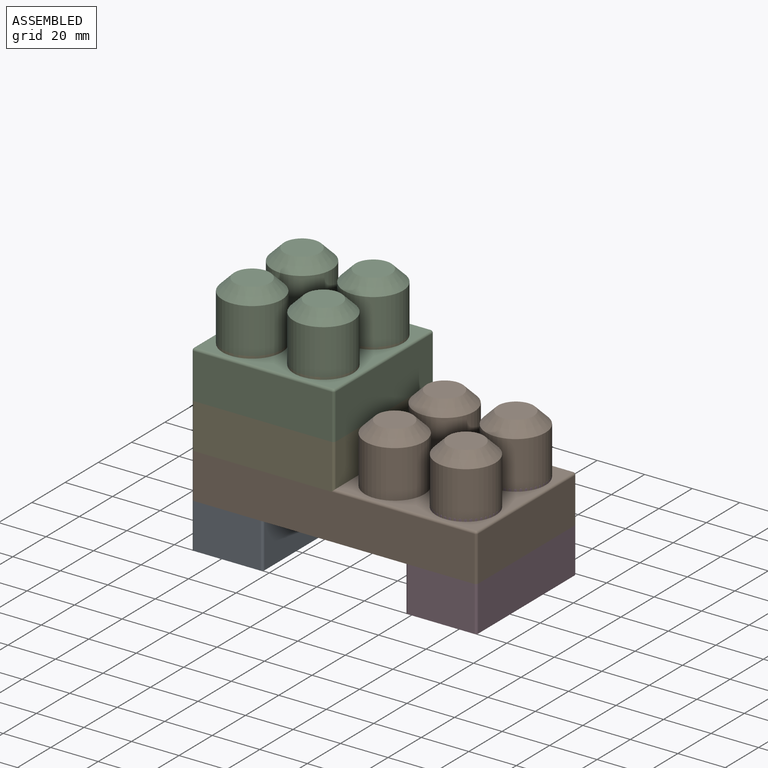
[diagram: assembled view]
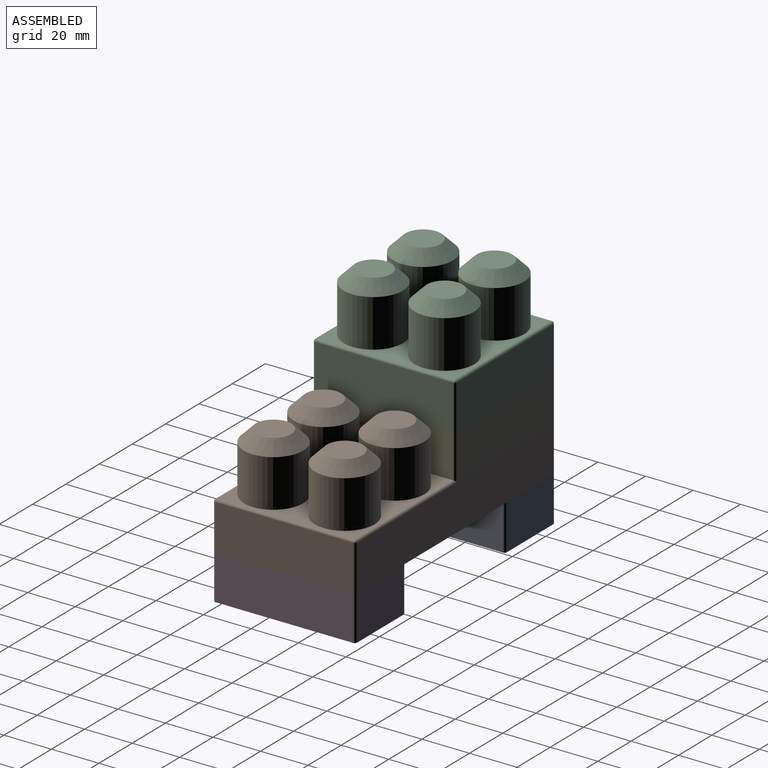
[diagram: assembled view, second angle]
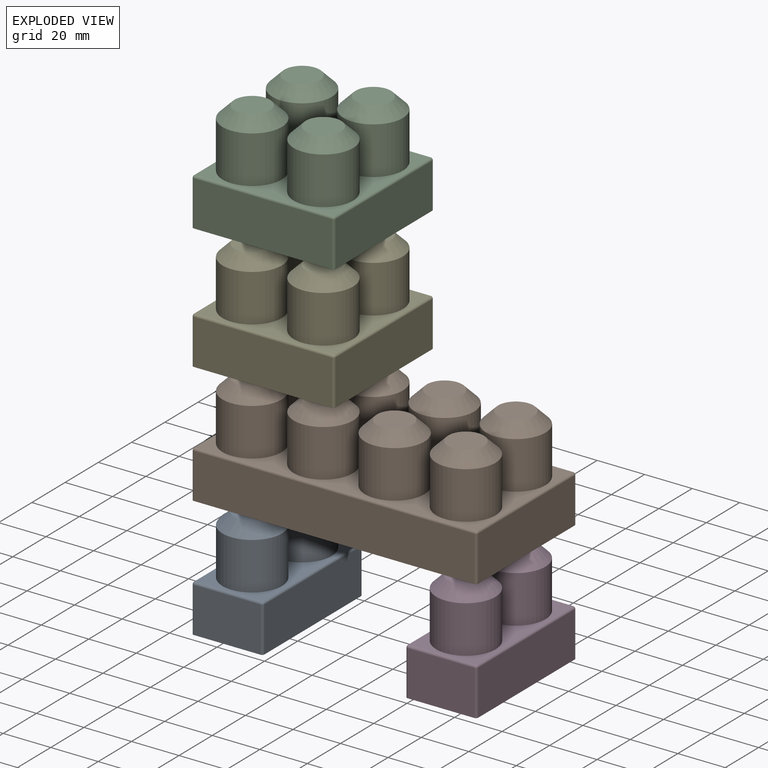
[diagram: exploded view]
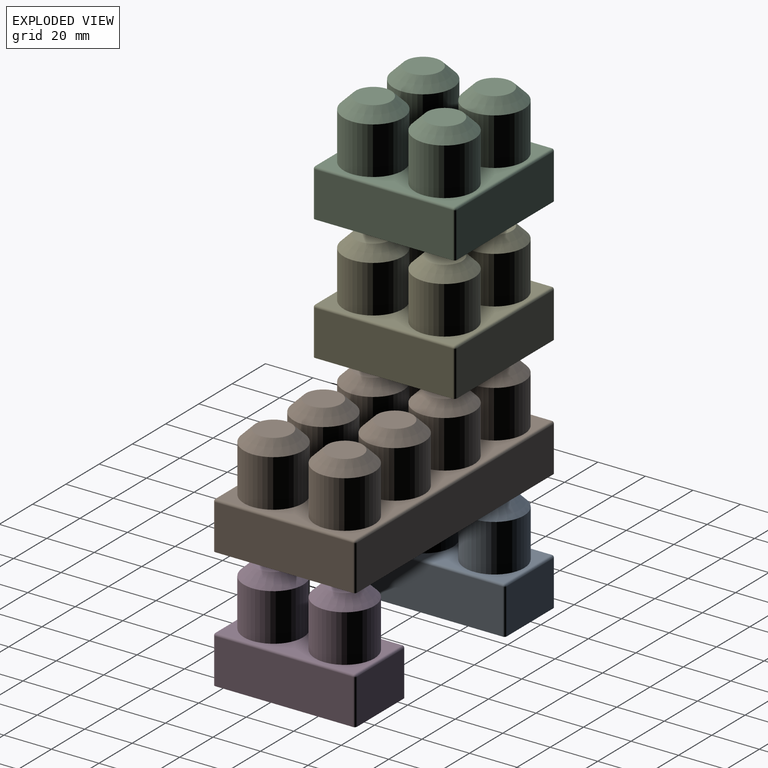
[diagram: exploded view, second angle]
ASSEMBLY  parts=5 mates=4
PART A: 35 faces, bbox 60x30x45 mm
  f0: plane 60x30mm, normal (0,0,-1), area 175.1mm2, adj f1,f2,f3,f4,f12,f14,f17,f23
  f1: plane 58x19mm, normal (0,-1,0), area 1102mm2, adj f0,f14,f20,f23
  f2: plane 28x19mm, normal (1,0,0), area 532mm2, adj f0,f17,f21,f23
  f3: plane 58x19mm, normal (0,1,0), area 1102mm2, adj f0,f12,f16,f17
  f4: plane 28x19mm, normal (-1,0,0), area 532mm2, adj f0,f12,f14,f15
  f5: plane 58x28mm, normal (0,0,1), area 642.3mm2, adj f6,f8,f15,f16,f20,f21
  f6: cylinder r=12.5mm len=25mm, axis (0,0,-1), area 1570.8mm2, adj f5,f11
  f7: plane 15x15mm, normal (0,0,1), area 176.7mm2, adj f11
  f8: cylinder r=12.5mm len=25mm, axis (0,0,-1), area 1570.8mm2, adj f5,f10
  f9: plane 15x15mm, normal (0,0,1), area 176.7mm2, adj f10
  f10: cone r=7.5mm half-angle=45deg, axis (0,0,-1), area 444.3mm2, adj f8,f9
  f11: cone r=7.5mm half-angle=45deg, axis (0,0,-1), area 444.3mm2, adj f6,f7
  f12: cylinder r=1mm len=19mm, axis (0,0,-1), area 29.8mm2, adj f0,f3,f4,f13
  f13: sphere r=1mm, area 1.6mm2, adj f12,f15,f16
  f14: cylinder r=1mm len=19mm, axis (0,0,1), area 29.8mm2, adj f0,f1,f4,f18
  f15: cylinder r=1mm len=28mm, axis (0,1,0), area 44mm2, adj f4,f5,f13,f18
  f16: cylinder r=1mm len=58mm, axis (1,0,0), area 91.1mm2, adj f3,f5,f13,f19
  f17: cylinder r=1mm len=19mm, axis (0,0,1), area 29.8mm2, adj f0,f2,f3,f19
  f18: sphere r=1mm, area 1.6mm2, adj f14,f15,f20
  f19: sphere r=1mm, area 1.6mm2, adj f16,f17,f21
  f20: cylinder r=1mm len=58mm, axis (-1,0,0), area 91.1mm2, adj f1,f5,f18,f22
  f21: cylinder r=1mm len=28mm, axis (0,-1,0), area 44mm2, adj f2,f5,f19,f22
  f22: sphere r=1mm, area 1.6mm2, adj f20,f21,f23
  f23: cylinder r=1mm len=19mm, axis (0,0,-1), area 29.8mm2, adj f0,f1,f2,f22
  f24: plane 58x19mm, normal (0,1,0), area 1102mm2, adj f0,f25,f27,f28
  f25: plane 28x19mm, normal (-1,0,0), area 532mm2, adj f0,f24,f26,f28
  f26: plane 58x19mm, normal (0,-1,0), area 1102mm2, adj f0,f25,f27,f28
  f27: plane 28x19mm, normal (1,0,0), area 532mm2, adj f0,f24,f26,f28
  f28: plane 58x28mm, normal (0,0,-1), area 793mm2, adj f24,f25,f26,f27,f29,f31
  f29: cylinder r=11.5mm len=23mm, axis (0,0,-1), area 1487.5mm2, adj f28,f34
  f30: plane 14.17x14.17mm, normal (0,0,-1), area 157.7mm2, adj f34
  f31: cylinder r=11.5mm len=23mm, axis (0,0,-1), area 1487.5mm2, adj f28,f33
  f32: plane 14.17x14.17mm, normal (0,0,-1), area 157.7mm2, adj f33
  f33: cone r=6.79mm half-angle=45deg, axis (0,0,-1), area 364.5mm2, adj f31,f32
  f34: cone r=6.79mm half-angle=45deg, axis (0,0,-1), area 364.5mm2, adj f29,f30
PART B: 71 faces, bbox 120x60x45 mm
  f0: plane 120x60mm, normal (0,0,-1), area 355.1mm2, adj f1,f2,f3,f4,f30,f32,f35,f41
  f1: plane 118x19mm, normal (0,-1,0), area 2242mm2, adj f0,f32,f38,f41
  f2: plane 58x19mm, normal (1,0,0), area 1102mm2, adj f0,f35,f39,f41
  f3: plane 118x19mm, normal (0,1,0), area 2242mm2, adj f0,f30,f34,f35
  f4: plane 58x19mm, normal (-1,0,0), area 1102mm2, adj f0,f30,f32,f33
  f5: plane 118x58mm, normal (0,0,1), area 2917mm2, adj f6,f8,f10,f12,f14,f16,f18,f20
  f6: cylinder r=12.5mm len=25mm, axis (0,0,-1), area 1570.8mm2, adj f5,f29
  f7: plane 15x15mm, normal (0,0,1), area 176.7mm2, adj f29
  f8: cylinder r=12.5mm len=25mm, axis (0,0,-1), area 1570.8mm2, adj f5,f28
  f9: plane 15x15mm, normal (0,0,1), area 176.7mm2, adj f28
  f10: cylinder r=12.5mm len=25mm, axis (0,0,-1), area 1570.8mm2, adj f5,f27
  f11: plane 15x15mm, normal (0,0,1), area 176.7mm2, adj f27
  f12: cylinder r=12.5mm len=25mm, axis (0,0,-1), area 1570.8mm2, adj f5,f26
  f13: plane 15x15mm, normal (0,0,1), area 176.7mm2, adj f26
  f14: cylinder r=12.5mm len=25mm, axis (0,0,-1), area 1570.8mm2, adj f5,f22
  f15: plane 15x15mm, normal (0,0,1), area 176.7mm2, adj f22
  f16: cylinder r=12.5mm len=25mm, axis (0,0,-1), area 1570.8mm2, adj f5,f23
  f17: plane 15x15mm, normal (0,0,1), area 176.7mm2, adj f23
  f18: cylinder r=12.5mm len=25mm, axis (0,0,-1), area 1570.8mm2, adj f5,f24
  f19: plane 15x15mm, normal (0,0,1), area 176.7mm2, adj f24
  f20: cylinder r=12.5mm len=25mm, axis (0,0,-1), area 1570.8mm2, adj f5,f25
  f21: plane 15x15mm, normal (0,0,1), area 176.7mm2, adj f25
  f22: cone r=7.5mm half-angle=45deg, axis (0,0,-1), area 444.3mm2, adj f14,f15
  f23: cone r=7.5mm half-angle=45deg, axis (0,0,-1), area 444.3mm2, adj f16,f17
  f24: cone r=7.5mm half-angle=45deg, axis (0,0,-1), area 444.3mm2, adj f18,f19
  f25: cone r=7.5mm half-angle=45deg, axis (0,0,-1), area 444.3mm2, adj f20,f21
  f26: cone r=7.5mm half-angle=45deg, axis (0,0,-1), area 444.3mm2, adj f12,f13
  f27: cone r=7.5mm half-angle=45deg, axis (0,0,-1), area 444.3mm2, adj f10,f11
  f28: cone r=7.5mm half-angle=45deg, axis (0,0,-1), area 444.3mm2, adj f8,f9
  f29: cone r=7.5mm half-angle=45deg, axis (0,0,-1), area 444.3mm2, adj f6,f7
  f30: cylinder r=1mm len=19mm, axis (0,0,-1), area 29.8mm2, adj f0,f3,f4,f31
  f31: sphere r=1mm, area 1.6mm2, adj f30,f33,f34
  f32: cylinder r=1mm len=19mm, axis (0,0,1), area 29.8mm2, adj f0,f1,f4,f36
  f33: cylinder r=1mm len=58mm, axis (0,1,0), area 91.1mm2, adj f4,f5,f31,f36
  f34: cylinder r=1mm len=118mm, axis (1,0,0), area 185.4mm2, adj f3,f5,f31,f37
  f35: cylinder r=1mm len=19mm, axis (0,0,1), area 29.8mm2, adj f0,f2,f3,f37
  f36: sphere r=1mm, area 1.6mm2, adj f32,f33,f38
  f37: sphere r=1mm, area 1.6mm2, adj f34,f35,f39
  f38: cylinder r=1mm len=118mm, axis (-1,0,0), area 185.4mm2, adj f1,f5,f36,f40
  f39: cylinder r=1mm len=58mm, axis (0,-1,0), area 91.1mm2, adj f2,f5,f37,f40
  f40: sphere r=1mm, area 1.6mm2, adj f38,f39,f41
  f41: cylinder r=1mm len=19mm, axis (0,0,-1), area 29.8mm2, adj f0,f1,f2,f40
  f42: plane 118x19mm, normal (0,1,0), area 2242mm2, adj f0,f43,f45,f46
  f43: plane 58x19mm, normal (-1,0,0), area 1102mm2, adj f0,f42,f44,f46
  f44: plane 118x19mm, normal (0,-1,0), area 2242mm2, adj f0,f43,f45,f46
  f45: plane 58x19mm, normal (1,0,0), area 1102mm2, adj f0,f42,f44,f46
  f46: plane 118x58mm, normal (0,0,-1), area 3520.2mm2, adj f42,f43,f44,f45,f47,f49,f51,f53
  f47: cylinder r=11.5mm len=23mm, axis (0,0,-1), area 1487.5mm2, adj f46,f70
  f48: plane 14.17x14.17mm, normal (0,0,-1), area 157.7mm2, adj f70
  f49: cylinder r=11.5mm len=23mm, axis (0,0,-1), area 1487.5mm2, adj f46,f69
  f50: plane 14.17x14.17mm, normal (0,0,-1), area 157.7mm2, adj f69
  f51: cylinder r=11.5mm len=23mm, axis (0,0,-1), area 1487.5mm2, adj f46,f68
  f52: plane 14.17x14.17mm, normal (0,0,-1), area 157.7mm2, adj f68
  f53: cylinder r=11.5mm len=23mm, axis (0,0,-1), area 1487.5mm2, adj f46,f67
  f54: plane 14.17x14.17mm, normal (0,0,-1), area 157.7mm2, adj f67
  f55: cylinder r=11.5mm len=23mm, axis (0,0,-1), area 1487.5mm2, adj f46,f63
  f56: plane 14.17x14.17mm, normal (0,0,-1), area 157.7mm2, adj f63
  f57: cylinder r=11.5mm len=23mm, axis (0,0,-1), area 1487.5mm2, adj f46,f64
  f58: plane 14.17x14.17mm, normal (0,0,-1), area 157.7mm2, adj f64
  f59: cylinder r=11.5mm len=23mm, axis (0,0,-1), area 1487.5mm2, adj f46,f65
  f60: plane 14.17x14.17mm, normal (0,0,-1), area 157.7mm2, adj f65
  f61: cylinder r=11.5mm len=23mm, axis (0,0,-1), area 1487.5mm2, adj f46,f66
  f62: plane 14.17x14.17mm, normal (0,0,-1), area 157.7mm2, adj f66
  f63: cone r=6.79mm half-angle=45deg, axis (0,0,-1), area 364.5mm2, adj f55,f56
  f64: cone r=6.79mm half-angle=45deg, axis (0,0,-1), area 364.5mm2, adj f57,f58
  f65: cone r=6.79mm half-angle=45deg, axis (0,0,-1), area 364.5mm2, adj f59,f60
  f66: cone r=6.79mm half-angle=45deg, axis (0,0,-1), area 364.5mm2, adj f61,f62
  f67: cone r=6.79mm half-angle=45deg, axis (0,0,-1), area 364.5mm2, adj f53,f54
  f68: cone r=6.79mm half-angle=45deg, axis (0,0,-1), area 364.5mm2, adj f51,f52
  f69: cone r=6.79mm half-angle=45deg, axis (0,0,-1), area 364.5mm2, adj f49,f50
  f70: cone r=6.79mm half-angle=45deg, axis (0,0,-1), area 364.5mm2, adj f47,f48
PART C: 47 faces, bbox 60x60x45 mm
  f0: plane 60x60mm, normal (0,0,-1), area 235.1mm2, adj f1,f2,f3,f4,f18,f20,f23,f29
  f1: plane 58x19mm, normal (0,-1,0), area 1102mm2, adj f0,f20,f26,f29
  f2: plane 58x19mm, normal (1,0,0), area 1102mm2, adj f0,f23,f27,f29
  f3: plane 58x19mm, normal (0,1,0), area 1102mm2, adj f0,f18,f22,f23
  f4: plane 58x19mm, normal (-1,0,0), area 1102mm2, adj f0,f18,f20,f21
  f5: plane 58x58mm, normal (0,0,1), area 1400.5mm2, adj f6,f8,f10,f12,f21,f22,f26,f27
  f6: cylinder r=12.5mm len=25mm, axis (0,0,-1), area 1570.8mm2, adj f5,f17
  f7: plane 15x15mm, normal (0,0,1), area 176.7mm2, adj f17
  f8: cylinder r=12.5mm len=25mm, axis (0,0,-1), area 1570.8mm2, adj f5,f16
  f9: plane 15x15mm, normal (0,0,1), area 176.7mm2, adj f16
  f10: cylinder r=12.5mm len=25mm, axis (0,0,-1), area 1570.8mm2, adj f5,f14
  f11: plane 15x15mm, normal (0,0,1), area 176.7mm2, adj f14
  f12: cylinder r=12.5mm len=25mm, axis (0,0,-1), area 1570.8mm2, adj f5,f15
  f13: plane 15x15mm, normal (0,0,1), area 176.7mm2, adj f15
  f14: cone r=7.5mm half-angle=45deg, axis (0,0,-1), area 444.3mm2, adj f10,f11
  f15: cone r=7.5mm half-angle=45deg, axis (0,0,-1), area 444.3mm2, adj f12,f13
  f16: cone r=7.5mm half-angle=45deg, axis (0,0,-1), area 444.3mm2, adj f8,f9
  f17: cone r=7.5mm half-angle=45deg, axis (0,0,-1), area 444.3mm2, adj f6,f7
  f18: cylinder r=1mm len=19mm, axis (0,0,-1), area 29.8mm2, adj f0,f3,f4,f19
  f19: sphere r=1mm, area 1.6mm2, adj f18,f21,f22
  f20: cylinder r=1mm len=19mm, axis (0,0,1), area 29.8mm2, adj f0,f1,f4,f24
  f21: cylinder r=1mm len=58mm, axis (0,1,0), area 91.1mm2, adj f4,f5,f19,f24
  f22: cylinder r=1mm len=58mm, axis (1,0,0), area 91.1mm2, adj f3,f5,f19,f25
  f23: cylinder r=1mm len=19mm, axis (0,0,1), area 29.8mm2, adj f0,f2,f3,f25
  f24: sphere r=1mm, area 1.6mm2, adj f20,f21,f26
  f25: sphere r=1mm, area 1.6mm2, adj f22,f23,f27
  f26: cylinder r=1mm len=58mm, axis (-1,0,0), area 91.1mm2, adj f1,f5,f24,f28
  f27: cylinder r=1mm len=58mm, axis (0,-1,0), area 91.1mm2, adj f2,f5,f25,f28
  f28: sphere r=1mm, area 1.6mm2, adj f26,f27,f29
  f29: cylinder r=1mm len=19mm, axis (0,0,-1), area 29.8mm2, adj f0,f1,f2,f28
  f30: plane 58x19mm, normal (0,1,0), area 1102mm2, adj f0,f31,f33,f34
  f31: plane 58x19mm, normal (-1,0,0), area 1102mm2, adj f0,f30,f32,f34
  f32: plane 58x19mm, normal (0,-1,0), area 1102mm2, adj f0,f31,f33,f34
  f33: plane 58x19mm, normal (1,0,0), area 1102mm2, adj f0,f30,f32,f34
  f34: plane 58x58mm, normal (0,0,-1), area 1702.1mm2, adj f30,f31,f32,f33,f35,f37,f39,f41
  f35: cylinder r=11.5mm len=23mm, axis (0,0,-1), area 1487.5mm2, adj f34,f46
  f36: plane 14.17x14.17mm, normal (0,0,-1), area 157.7mm2, adj f46
  f37: cylinder r=11.5mm len=23mm, axis (0,0,-1), area 1487.5mm2, adj f34,f45
  f38: plane 14.17x14.17mm, normal (0,0,-1), area 157.7mm2, adj f45
  f39: cylinder r=11.5mm len=23mm, axis (0,0,-1), area 1487.5mm2, adj f34,f43
  f40: plane 14.17x14.17mm, normal (0,0,-1), area 157.7mm2, adj f43
  f41: cylinder r=11.5mm len=23mm, axis (0,0,-1), area 1487.5mm2, adj f34,f44
  f42: plane 14.17x14.17mm, normal (0,0,-1), area 157.7mm2, adj f44
  f43: cone r=6.79mm half-angle=45deg, axis (0,0,-1), area 364.5mm2, adj f39,f40
  f44: cone r=6.79mm half-angle=45deg, axis (0,0,-1), area 364.5mm2, adj f41,f42
  f45: cone r=6.79mm half-angle=45deg, axis (0,0,-1), area 364.5mm2, adj f37,f38
  f46: cone r=6.79mm half-angle=45deg, axis (0,0,-1), area 364.5mm2, adj f35,f36
PART D: same geometry as A
PART E: same geometry as C
PLACE A rot(axis=(0,0,1),90deg) t=(-15,29,0)mm
PLACE B t=(30,29,29)mm
PLACE C t=(0,29,67)mm
PLACE D rot(axis=(0,0,-1),90deg) t=(75,29,0)mm
PLACE E t=(0,29,48)mm
MATE fastened B.f0 <-> D.f28  axis (0,0,1) through (89,-1,19)mm
MATE fastened A.f28 <-> B.f0  axis (0,0,1) through (-29,-1,19)mm
MATE fastened E.f0 <-> B.f46  axis (0,0,1) through (-29,-1,38)mm
MATE fastened C.f0 <-> E.f34  axis (0,0,-1) through (-29,-1,57)mm
